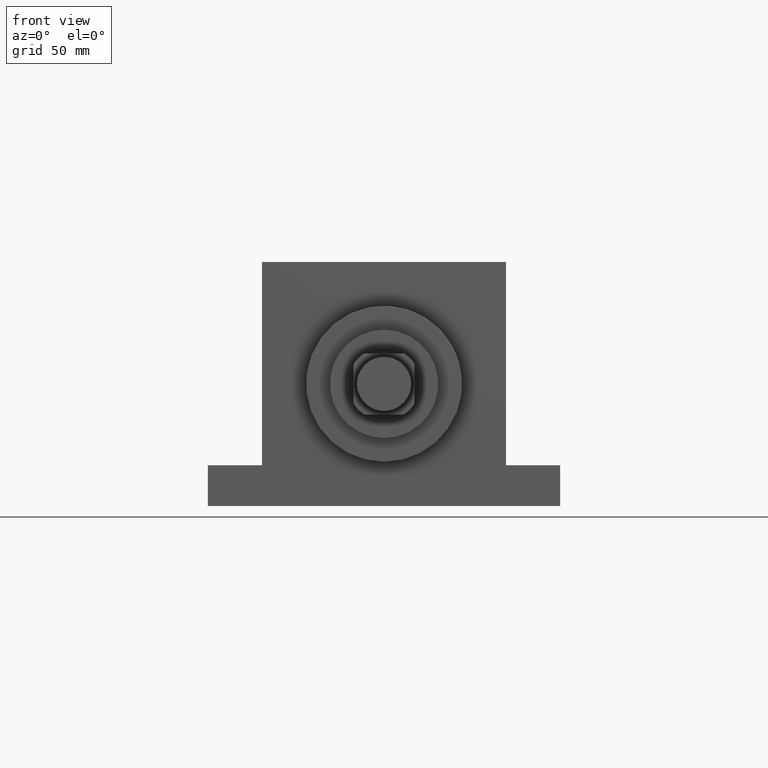
[diagram: clean part render]
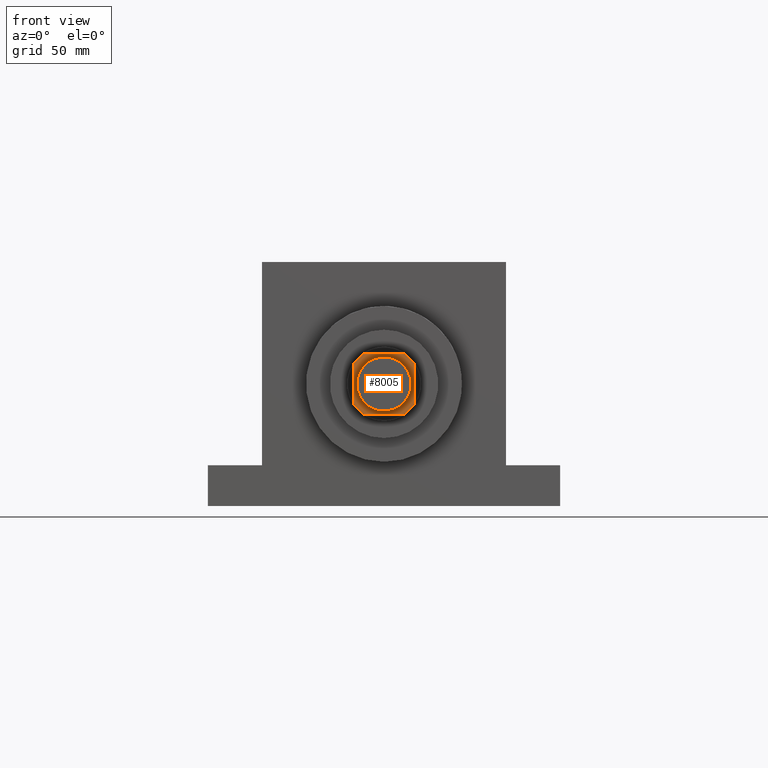
[diagram: same view with one face highlighted and labeled with its STEP entity id]
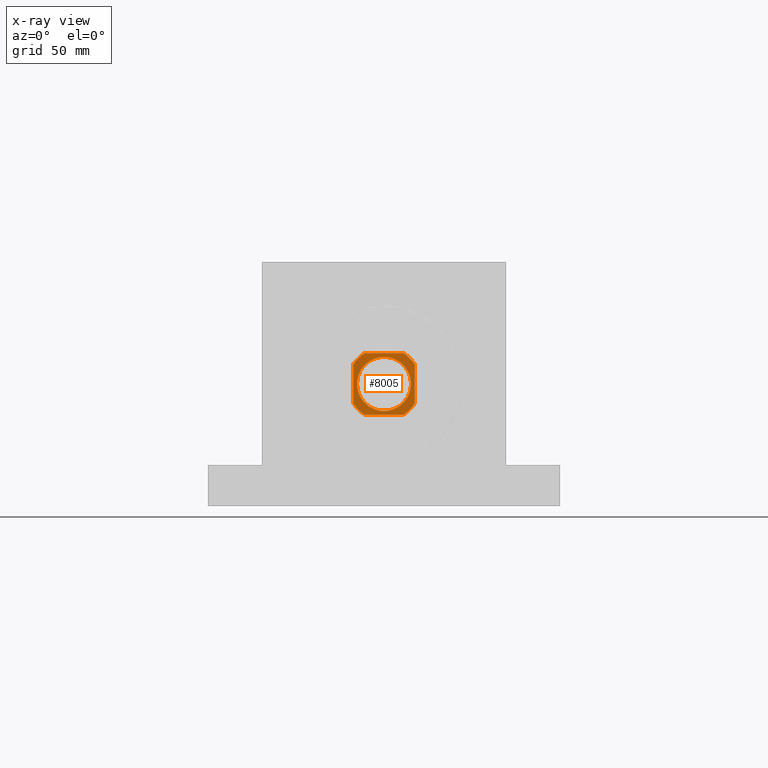
[diagram: x-ray of the same camera — body ghosted, the highlighted face saturated]
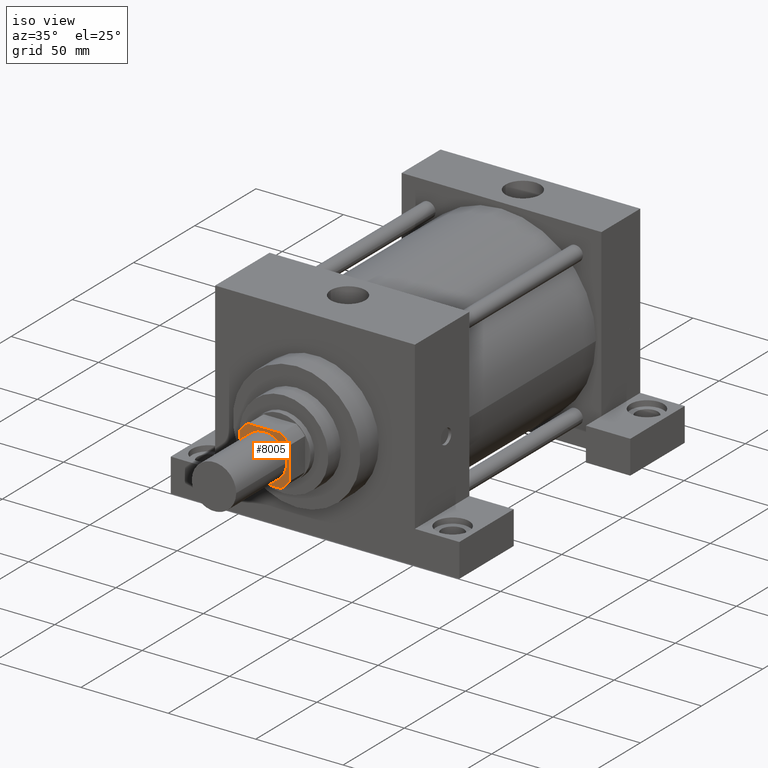
[diagram: same view with one face highlighted and labeled with its STEP entity id]
A machine part, front view. The second image highlights one B-rep face of the part: STEP entity #8005.
The next image is the same camera in x-ray: the body ghosted, the highlighted face saturated — about 0% of this face is hidden behind the body in this view.
A second angle (iso view) of the same face is appended — the face is thin or edge-on in the first view.
In plain terms, the highlighted planar face has unit normal (0, 1, 0).
Its self-contained STEP definition (entity closure, byte-faithful):
#118=EDGE_CURVE('',#124,#124,#119,.T.);
#119=CIRCLE('',#120,1.270000000E+001);
#120=AXIS2_PLACEMENT_3D('',#121,#122,#123);
#121=CARTESIAN_POINT('',(0.000000000E+000,0.000000000E+000,0.000000000E+000));
#122=DIRECTION('',(0.0E+000,1.0E+000,0.0E+000));
#123=DIRECTION('',(1.0E+000,0.0E+000,0.0E+000));
#124=VERTEX_POINT('',#125);
#125=CARTESIAN_POINT('',(1.270000000E+001,0.000000000E+000,0.000000000E+000));
#153=FACE_OUTER_BOUND('',#155,.T.);
#154=FACE_BOUND('',#156,.T.);
#155=EDGE_LOOP('',(#157));
#156=EDGE_LOOP('',(#166,#167,#168,#169,#170,#171,#172,#173));
#157=ORIENTED_EDGE('',*,*,#118,.T.);
#166=ORIENTED_EDGE('',*,*,#174,.T.);
#167=ORIENTED_EDGE('',*,*,#183,.F.);
#168=ORIENTED_EDGE('',*,*,#191,.T.);
#169=ORIENTED_EDGE('',*,*,#198,.F.);
#170=ORIENTED_EDGE('',*,*,#201,.T.);
#171=ORIENTED_EDGE('',*,*,#208,.F.);
#172=ORIENTED_EDGE('',*,*,#211,.T.);
#173=ORIENTED_EDGE('',*,*,#218,.F.);
#174=EDGE_CURVE('',#179,#180,#175,.T.);
#175=LINE('',#176,#177);
#176=CARTESIAN_POINT('',(1.428750000E+001,0.000000000E+000,1.428750000E+001));
#177=VECTOR('',#178,1.0E+000);
#178=DIRECTION('',(-1.0E+000,0.0E+000,0.0E+000));
#179=VERTEX_POINT('',#181);
#180=VERTEX_POINT('',#182);
#181=CARTESIAN_POINT('',(9.315465150E+000,0.000000000E+000,1.428750000E+001));
#182=CARTESIAN_POINT('',(-9.315465150E+000,0.000000000E+000,1.428750000E+001));
#183=EDGE_CURVE('',#189,#180,#184,.T.);
#184=CIRCLE('',#185,1.705610000E+001);
#185=AXIS2_PLACEMENT_3D('',#186,#187,#188);
#186=CARTESIAN_POINT('',(0.000000000E+000,0.000000000E+000,0.000000000E+000));
#187=DIRECTION('',(0.0E+000,1.0E+000,0.0E+000));
#188=DIRECTION('',(1.0E+000,0.0E+000,0.0E+000));
#189=VERTEX_POINT('',#190);
#190=CARTESIAN_POINT('',(-1.428750000E+001,0.000000000E+000,9.315465150E+000));
#191=EDGE_CURVE('',#189,#196,#192,.T.);
#192=LINE('',#193,#194);
#193=CARTESIAN_POINT('',(-1.428750000E+001,0.000000000E+000,1.428750000E+001));
#194=VECTOR('',#195,1.0E+000);
#195=DIRECTION('',(0.0E+000,0.0E+000,-1.0E+000));
#196=VERTEX_POINT('',#197);
#197=CARTESIAN_POINT('',(-1.428750000E+001,0.000000000E+000,-9.315465150E+000));
#198=EDGE_CURVE('',#199,#196,#184,.T.);
#199=VERTEX_POINT('',#200);
#200=CARTESIAN_POINT('',(-9.315465150E+000,0.000000000E+000,-1.428750000E+001));
#201=EDGE_CURVE('',#199,#206,#202,.T.);
#202=LINE('',#203,#204);
#203=CARTESIAN_POINT('',(-1.428750000E+001,0.000000000E+000,-1.428750000E+001));
#204=VECTOR('',#205,1.0E+000);
#205=DIRECTION('',(1.0E+000,0.0E+000,0.0E+000));
#206=VERTEX_POINT('',#207);
#207=CARTESIAN_POINT('',(9.315465150E+000,0.000000000E+000,-1.428750000E+001));
#208=EDGE_CURVE('',#209,#206,#184,.T.);
#209=VERTEX_POINT('',#210);
#210=CARTESIAN_POINT('',(1.428750000E+001,0.000000000E+000,-9.315465150E+000));
#211=EDGE_CURVE('',#209,#216,#212,.T.);
#212=LINE('',#213,#214);
#213=CARTESIAN_POINT('',(1.428750000E+001,0.000000000E+000,-1.428750000E+001));
#214=VECTOR('',#215,1.0E+000);
#215=DIRECTION('',(0.0E+000,0.0E+000,1.0E+000));
#216=VERTEX_POINT('',#217);
#217=CARTESIAN_POINT('',(1.428750000E+001,0.000000000E+000,9.315465150E+000));
#218=EDGE_CURVE('',#179,#216,#184,.T.);
#219=PLANE('',#220);
#220=AXIS2_PLACEMENT_3D('',#221,#222,#223);
#221=CARTESIAN_POINT('',(0.000000000E+000,0.000000000E+000,0.000000000E+000));
#222=DIRECTION('',(0.0E+000,1.0E+000,0.0E+000));
#223=DIRECTION('',(0.0E+000,0.0E+000,1.0E+000));
#8005=ADVANCED_FACE('',(#153,#154),#219,.F.);